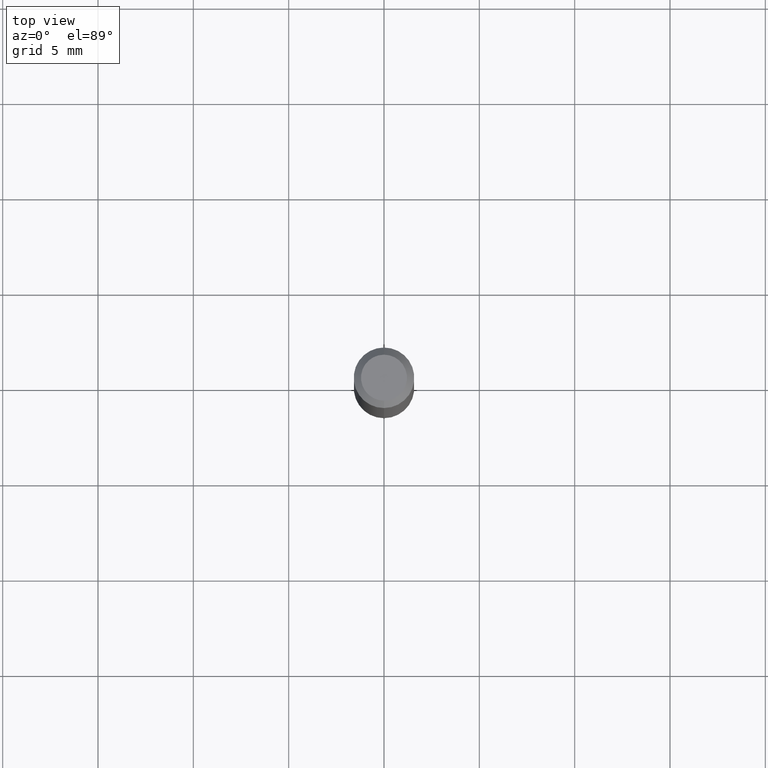
[diagram: clean part render]
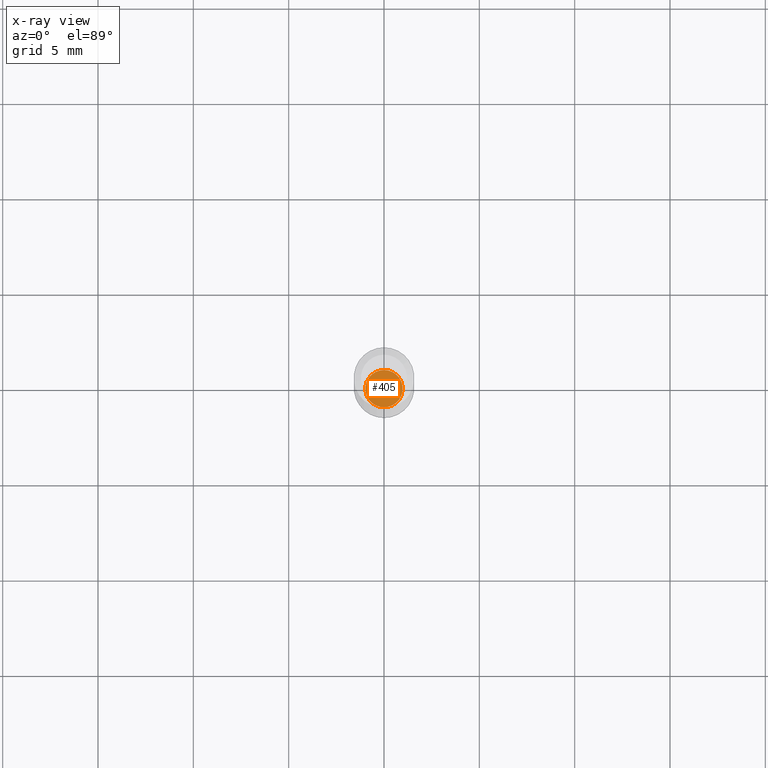
[diagram: x-ray — body ghosted, one internal face saturated and labeled with its STEP entity id]
A machine part, top view, then the same camera in x-ray: the body is ghosted and one INTERNAL B-rep face — a face not visible from any outside direction — is saturated and labeled: STEP entity #405.
In plain terms, the highlighted planar face has unit normal (-0, 0, 1).
Its self-contained STEP definition (entity closure, byte-faithful):
#24 = CARTESIAN_POINT ( 'NONE',  ( -2.691932112247734171E-16, -0.03855000000000458060, -1.313000000000000389 ) ) ;
#28 = CARTESIAN_POINT ( 'NONE',  ( 3.211224111212249912E-29, -4.583851629118917536E-15, -1.313000000000000389 ) ) ;
#35 = CARTESIAN_POINT ( 'NONE',  ( 3.211224111212249912E-29, -4.583851629118917536E-15, -1.313000000000000389 ) ) ;
#38 = PLANE ( 'NONE',  #279 ) ;
#48 = DIRECTION ( 'NONE',  ( -6.982962677686265922E-15, -1.000000000000000000, 3.491128430402830124E-15 ) ) ;
#92 = DIRECTION ( 'NONE',  ( -6.982962677686265133E-15, -1.000000000000000000, 0.000000000000000000 ) ) ;
#93 = VERTEX_POINT ( 'NONE', #441 ) ;
#123 = DIRECTION ( 'NONE',  ( -2.445715240831873182E-29, 3.491128430402830124E-15, 1.000000000000000000 ) ) ;
#129 = EDGE_LOOP ( 'NONE', ( #446, #239 ) ) ;
#167 = CARTESIAN_POINT ( 'NONE',  ( 3.211224111212249912E-29, -4.583851629118917536E-15, -1.313000000000000389 ) ) ;
#194 = CIRCLE ( 'NONE', #485, 0.03855000000000000093 ) ;
#197 = DIRECTION ( 'NONE',  ( -2.445715240831872622E-29, 3.491128430402830124E-15, 1.000000000000000000 ) ) ;
#234 = DIRECTION ( 'NONE',  ( -2.445715240831873182E-29, 3.491128430402830124E-15, 1.000000000000000000 ) ) ;
#239 = ORIENTED_EDGE ( 'NONE', *, *, #482, .F. ) ;
#271 = CIRCLE ( 'NONE', #476, 0.03855000000000000093 ) ;
#278 = EDGE_CURVE ( 'NONE', #362, #93, #271, .T. ) ;
#279 = AXIS2_PLACEMENT_3D ( 'NONE', #35, #197, #48 ) ;
#320 = FACE_OUTER_BOUND ( 'NONE', #129, .T. ) ;
#342 = DIRECTION ( 'NONE',  ( -6.982962677686265133E-15, -1.000000000000000000, 0.000000000000000000 ) ) ;
#362 = VERTEX_POINT ( 'NONE', #24 ) ;
#405 = ADVANCED_FACE ( 'NONE', ( #320 ), #38, .F. ) ;
#441 = CARTESIAN_POINT ( 'NONE',  ( 2.756905814749515687E-16, 0.03854999999999541432, -1.313000000000000389 ) ) ;
#446 = ORIENTED_EDGE ( 'NONE', *, *, #278, .F. ) ;
#476 = AXIS2_PLACEMENT_3D ( 'NONE', #28, #234, #342 ) ;
#482 = EDGE_CURVE ( 'NONE', #93, #362, #194, .T. ) ;
#485 = AXIS2_PLACEMENT_3D ( 'NONE', #167, #123, #92 ) ;